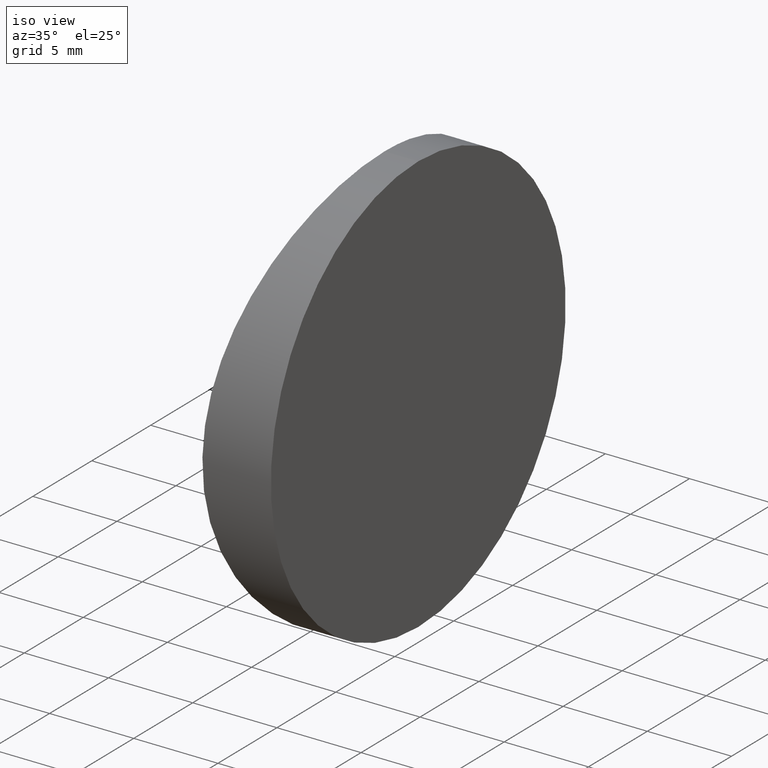
[diagram: clean part render]
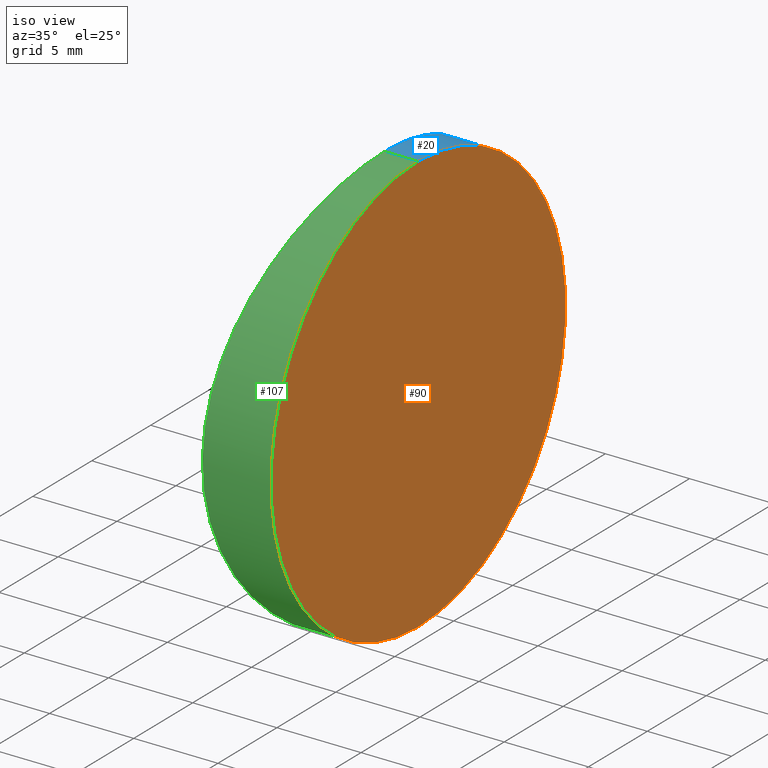
[diagram: same view with three faces highlighted in distinct colors, each labeled with its STEP entity id]
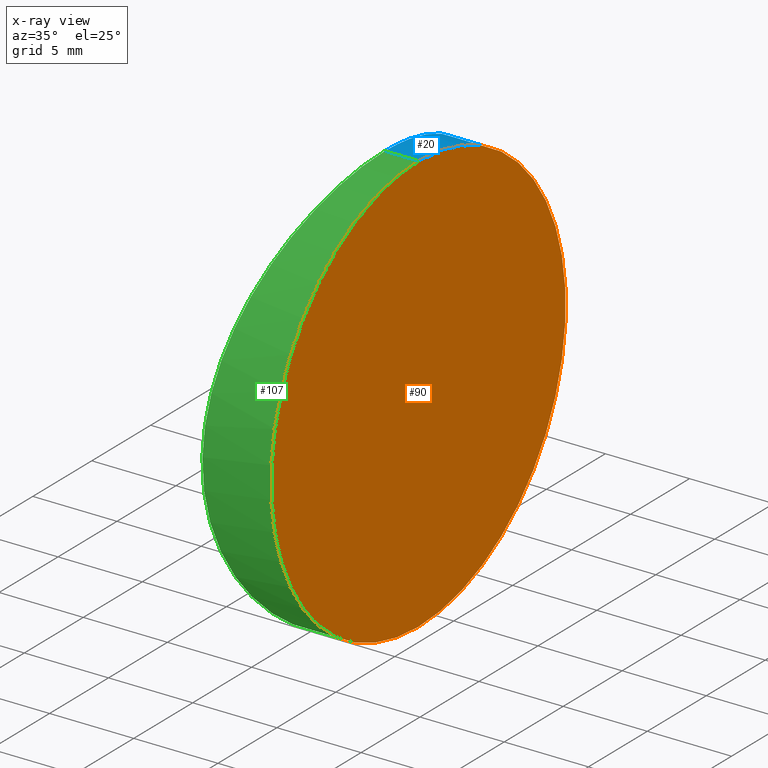
[diagram: x-ray of the same camera — body ghosted, the three highlighted faces saturated]
A machine part, iso view with three faces highlighted in distinct colors.
The next image is the same camera in x-ray (body ghosted, the three faces saturated) — at least one of them is partly hidden behind the body in this view.
Their STEP definitions:

[orange] entity #90 — the highlighted planar face has unit normal (1, 0, -0).
#5 = CIRCLE ( 'NONE', #85, 12.50000000000000500 ) ;
#6 = CARTESIAN_POINT ( 'NONE',  ( -30.35479566514872800, 12.50000000000000200, 12.50000000000001400 ) ) ;
#16 = ORIENTED_EDGE ( 'NONE', *, *, #49, .T. ) ;
#32 = DIRECTION ( 'NONE',  ( -2.775557561562890400E-016, 0.0000000000000000000, -1.000000000000000000 ) ) ;
#33 = VERTEX_POINT ( 'NONE', #6 ) ;
#37 = DIRECTION ( 'NONE',  ( -2.775557561562891800E-016, 0.0000000000000000000, -1.000000000000000000 ) ) ;
#47 = CIRCLE ( 'NONE', #145, 12.50000000000000500 ) ;
#49 = EDGE_CURVE ( 'NONE', #109, #33, #47, .T. ) ;
#52 = AXIS2_PLACEMENT_3D ( 'NONE', #163, #140, #37 ) ;
#56 = DIRECTION ( 'NONE',  ( -2.775557561562890400E-016, 0.0000000000000000000, -1.000000000000000000 ) ) ;
#58 = EDGE_CURVE ( 'NONE', #33, #109, #5, .T. ) ;
#60 = ORIENTED_EDGE ( 'NONE', *, *, #58, .T. ) ;
#75 = CARTESIAN_POINT ( 'NONE',  ( -30.35479566514873200, 12.50000000000000000, 8.425148263810005300E-015 ) ) ;
#85 = AXIS2_PLACEMENT_3D ( 'NONE', #146, #202, #32 ) ;
#88 = CARTESIAN_POINT ( 'NONE',  ( -30.35479566514873500, 12.50000000000000000, -12.49999999999999600 ) ) ;
#90 = ADVANCED_FACE ( 'NONE', ( #210 ), #160, .T. ) ;
#109 = VERTEX_POINT ( 'NONE', #88 ) ;
#140 = DIRECTION ( 'NONE',  ( 1.000000000000000000, 0.0000000000000000000, -2.775557561562891800E-016 ) ) ;
#145 = AXIS2_PLACEMENT_3D ( 'NONE', #75, #179, #56 ) ;
#146 = CARTESIAN_POINT ( 'NONE',  ( -30.35479566514873200, 12.50000000000000000, 8.425148263810005300E-015 ) ) ;
#160 = PLANE ( 'NONE',  #52 ) ;
#163 = CARTESIAN_POINT ( 'NONE',  ( -30.35479566514873500, 25.00000000000000000, -12.49999999999999300 ) ) ;
#179 = DIRECTION ( 'NONE',  ( 1.000000000000000000, 0.0000000000000000000, -2.510324564891254900E-016 ) ) ;
#202 = DIRECTION ( 'NONE',  ( 1.000000000000000000, 0.0000000000000000000, -2.510324564891254900E-016 ) ) ;
#206 = EDGE_LOOP ( 'NONE', ( #16, #60 ) ) ;
#210 = FACE_OUTER_BOUND ( 'NONE', #206, .T. ) ;

[blue] entity #20 — the highlighted cylindrical surface (partial cylindrical patch) has radius 12.5 mm, axis along (1, -0, -0).
#2 = VERTEX_POINT ( 'NONE', #133 ) ;
#6 = CARTESIAN_POINT ( 'NONE',  ( -30.35479566514872800, 12.50000000000000200, 12.50000000000001400 ) ) ;
#7 = CARTESIAN_POINT ( 'NONE',  ( -33.47119643305961700, 21.62554184648596900, 8.552082537265112800 ) ) ;
#8 = CARTESIAN_POINT ( 'NONE',  ( -34.39810283979540600, 24.91789809687301000, -1.651526850015785100 ) ) ;
#10 = CARTESIAN_POINT ( 'NONE',  ( -32.88125121130715200, 18.77356529027105100, -10.84231225351518400 ) ) ;
#12 = CARTESIAN_POINT ( 'NONE',  ( -43.05479566514873100, 12.50000000000000000, 1.195010636699487400E-014 ) ) ;
#20 = ADVANCED_FACE ( 'NONE', ( #114 ), #186, .T. ) ;
#21 = EDGE_CURVE ( 'NONE', #2, #109, #92, .T. ) ;
#23 = CARTESIAN_POINT ( 'NONE',  ( -32.35499043444952600, 13.33137188643888200, 12.50000000000001200 ) ) ;
#24 = CARTESIAN_POINT ( 'NONE',  ( -33.66987187727320900, 22.41618696524534800, 7.621394026702614800 ) ) ;
#25 = CARTESIAN_POINT ( 'NONE',  ( -34.28878151335426600, 24.57196394557599800, -3.268972438969282900 ) ) ;
#26 = CARTESIAN_POINT ( 'NONE',  ( -32.61890513351478700, 16.92566304573188100, -11.69746624897471300 ) ) ;
#28 = DIRECTION ( 'NONE',  ( 0.0000000000000000000, 0.0000000000000000000, -1.000000000000000000 ) ) ;
#29 = EDGE_CURVE ( 'NONE', #2, #191, #195, .T. ) ;
#33 = VERTEX_POINT ( 'NONE', #6 ) ;
#36 = CARTESIAN_POINT ( 'NONE',  ( -32.35499043444952600, 12.50000000000000200, 12.50000000000001400 ) ) ;
#38 = CARTESIAN_POINT ( 'NONE',  ( -43.05479566514873100, 12.50000000000000200, 12.50000000000001800 ) ) ;
#39 = CARTESIAN_POINT ( 'NONE',  ( -32.46445565601055000, 15.36565906833539300, 12.17408620015704200 ) ) ;
#40 = CARTESIAN_POINT ( 'NONE',  ( -33.91988577952091100, 23.34132089832996500, 6.275311958395454000 ) ) ;
#41 = CARTESIAN_POINT ( 'NONE',  ( -34.17191425733323500, 24.19285128528872500, -4.437627627835635000 ) ) ;
#44 = CARTESIAN_POINT ( 'NONE',  ( -32.57409186788743900, 16.53585008383578600, -11.83771008089221300 ) ) ;
#46 = CARTESIAN_POINT ( 'NONE',  ( -32.35499043444955400, 13.33140420755182600, -12.49999999999999800 ) ) ;
#47 = CIRCLE ( 'NONE', #145, 12.50000000000000500 ) ;
#49 = EDGE_CURVE ( 'NONE', #109, #33, #47, .T. ) ;
#54 = ORIENTED_EDGE ( 'NONE', *, *, #73, .T. ) ;
#56 = DIRECTION ( 'NONE',  ( -2.775557561562890400E-016, 0.0000000000000000000, -1.000000000000000000 ) ) ;
#57 = CARTESIAN_POINT ( 'NONE',  ( -32.57602030610242100, 16.55331204058214900, 11.83169481514192100 ) ) ;
#59 = CARTESIAN_POINT ( 'NONE',  ( -34.17321094478526800, 24.19713152622336900, 4.426567198713768500 ) ) ;
#61 = CARTESIAN_POINT ( 'NONE',  ( -33.91901172235972000, 23.33839567913160800, -6.281165327918222000 ) ) ;
#63 = CARTESIAN_POINT ( 'NONE',  ( -32.46334279503634700, 15.35081097956752800, -12.17744324968865200 ) ) ;
#69 = EDGE_LOOP ( 'NONE', ( #143, #54, #91, #150 ) ) ;
#73 = EDGE_CURVE ( 'NONE', #191, #33, #102, .T. ) ;
#75 = CARTESIAN_POINT ( 'NONE',  ( -30.35479566514873200, 12.50000000000000000, 8.425148263810005300E-015 ) ) ;
#76 = CARTESIAN_POINT ( 'NONE',  ( -32.62026768850120800, 16.93682538263315600, 11.69314822468345700 ) ) ;
#77 = CARTESIAN_POINT ( 'NONE',  ( -34.29050405152387500, 24.57747471297531000, 3.248719051436539400 ) ) ;
#79 = CARTESIAN_POINT ( 'NONE',  ( -33.53732757780589700, 21.90824455992082100, -8.269786137502539000 ) ) ;
#88 = CARTESIAN_POINT ( 'NONE',  ( -30.35479566514873500, 12.50000000000000000, -12.49999999999999600 ) ) ;
#91 = ORIENTED_EDGE ( 'NONE', *, *, #49, .F. ) ;
#92 = LINE ( 'NONE', #218, #142 ) ;
#95 = CARTESIAN_POINT ( 'NONE',  ( -32.88217967378811600, 18.77953836592482900, 10.83930256535474300 ) ) ;
#96 = CARTESIAN_POINT ( 'NONE',  ( -34.39810659364498900, 24.91788391076384100, 1.647854282033586900 ) ) ;
#98 = CARTESIAN_POINT ( 'NONE',  ( -33.26924219003250000, 20.74957115124364300, -9.400045176153209800 ) ) ;
#100 = DIRECTION ( 'NONE',  ( 1.000000000000000000, -0.0000000000000000000, -2.775557561562888400E-016 ) ) ;
#102 = LINE ( 'NONE', #38, #194 ) ;
#109 = VERTEX_POINT ( 'NONE', #88 ) ;
#112 = DIRECTION ( 'NONE',  ( 1.000000000000000000, -0.0000000000000000000, -2.775557561562888400E-016 ) ) ;
#113 = CARTESIAN_POINT ( 'NONE',  ( -33.27033028632271800, 20.76751058533281500, 9.410249071414337900 ) ) ;
#114 = FACE_OUTER_BOUND ( 'NONE', #69, .T. ) ;
#115 = CARTESIAN_POINT ( 'NONE',  ( -34.42479807780463800, 25.00000748502369800, -0.8312335560276091800 ) ) ;
#116 = CARTESIAN_POINT ( 'NONE',  ( -33.07014989152160200, 19.78898751007649900, -10.16299661475165900 ) ) ;
#118 = CARTESIAN_POINT ( 'NONE',  ( -32.35499043444953300, 12.50000000000000000, -12.49999999999999600 ) ) ;
#127 = CARTESIAN_POINT ( 'NONE',  ( -32.35499043444952600, 12.50000000000000200, 12.50000000000001400 ) ) ;
#128 = CARTESIAN_POINT ( 'NONE',  ( -33.53808377340634900, 21.89817145232230500, 8.251714015446383500 ) ) ;
#129 = CARTESIAN_POINT ( 'NONE',  ( -34.32088799467995700, 24.67405692139543700, -2.865793362192267800 ) ) ;
#130 = CARTESIAN_POINT ( 'NONE',  ( -32.76583750708169200, 18.05822247603500600, -11.22608583024094900 ) ) ;
#133 = CARTESIAN_POINT ( 'NONE',  ( -32.35499043444953300, 12.50000000000000000, -12.49999999999999600 ) ) ;
#135 = AXIS2_PLACEMENT_3D ( 'NONE', #12, #169, #28 ) ;
#142 = VECTOR ( 'NONE', #100, 1000.000000000000000 ) ;
#143 = ORIENTED_EDGE ( 'NONE', *, *, #29, .T. ) ;
#145 = AXIS2_PLACEMENT_3D ( 'NONE', #75, #179, #56 ) ;
#148 = CARTESIAN_POINT ( 'NONE',  ( -32.38324965136683900, 14.15159362753464500, 12.41788006499636100 ) ) ;
#149 = CARTESIAN_POINT ( 'NONE',  ( -33.73480865586007800, 22.66160511542704000, 7.290934523575428400 ) ) ;
#150 = ORIENTED_EDGE ( 'NONE', *, *, #21, .F. ) ;
#151 = CARTESIAN_POINT ( 'NONE',  ( -34.21433697553718600, 24.33149137517067800, -4.053924783378406900 ) ) ;
#164 = CARTESIAN_POINT ( 'NONE',  ( -32.49816012569387900, 15.76870877863315500, 12.07202897683198000 ) ) ;
#165 = CARTESIAN_POINT ( 'NONE',  ( -34.03174674738138300, 23.72540071963021500, 5.559668255365044900 ) ) ;
#166 = CARTESIAN_POINT ( 'NONE',  ( -34.03111697971893800, 23.72321169362622200, -5.563340709761101600 ) ) ;
#168 = CARTESIAN_POINT ( 'NONE',  ( -32.49633491125222000, 15.74824763167628700, -12.07759716093246100 ) ) ;
#169 = DIRECTION ( 'NONE',  ( 1.000000000000000000, -0.0000000000000000000, -2.775557561562888400E-016 ) ) ;
#179 = DIRECTION ( 'NONE',  ( 1.000000000000000000, 0.0000000000000000000, -2.510324564891254900E-016 ) ) ;
#180 = CARTESIAN_POINT ( 'NONE',  ( -34.21617346675374400, 24.33747457323394100, 4.036553808109689000 ) ) ;
#181 = CARTESIAN_POINT ( 'NONE',  ( -33.67015600722552200, 22.42387198870166300, -7.644646723421753400 ) ) ;
#183 = CARTESIAN_POINT ( 'NONE',  ( -32.38323550218428400, 14.14772679815220300, -12.41788974669581700 ) ) ;
#186 = CYLINDRICAL_SURFACE ( 'NONE', #135, 12.50000000000000500 ) ;
#191 = VERTEX_POINT ( 'NONE', #36 ) ;
#194 = VECTOR ( 'NONE', #112, 1000.000000000000000 ) ;
#195 = B_SPLINE_CURVE_WITH_KNOTS ( 'NONE', 3,
 ( #118, #46, #183, #63, #168, #44, #26, #130, #10, #116, #216, #98, #199, #79, #181, #61, #166, #41, #151, #25, #129, #8, #115, #215, #96, #198, #77, #180, #59, #165, #40, #149, #24, #128, #7, #113, #214, #95, #197, #76, #57, #164, #39, #148, #23, #127 ),
 .UNSPECIFIED., .F., .F.,
 ( 4, 2, 2, 2, 2, 2, 2, 2, 2, 2, 2, 2, 2, 2, 2, 2, 2, 2, 2, 2, 2, 2, 4 ),
 ( -0.01965956743695985000, -0.01720210764477216000, -0.01597337774867831800, -0.01474464785258447500, -0.01228718806039679100, -0.01105845816430295000, -0.009829728268209108800, -0.007372268476021428400, -0.004914808683833746300, -0.003686078787739903400, -0.002457348891646060600, 1.109005416180530700E-007, 0.002457570692729300200, 0.003686300588823143000, 0.004915030484916982400, 0.007372490277104657600, 0.008601220173198496900, 0.009829950069292332800, 0.01228740986147999400, 0.01474486965366765900, 0.01597359954976148800, 0.01720232944585531700, 0.01965978923804298900 ),
 .UNSPECIFIED. ) ;
#197 = CARTESIAN_POINT ( 'NONE',  ( -32.76649940409258500, 18.06198174996481100, 11.22385399649514200 ) ) ;
#198 = CARTESIAN_POINT ( 'NONE',  ( -34.32192979179821900, 24.67735962661697300, 2.851180222827932400 ) ) ;
#199 = CARTESIAN_POINT ( 'NONE',  ( -33.33647099106389800, 21.04993342728970500, -9.127554190676795200 ) ) ;
#214 = CARTESIAN_POINT ( 'NONE',  ( -33.13608141734099600, 20.14240417897302400, 9.925559961918693800 ) ) ;
#215 = CARTESIAN_POINT ( 'NONE',  ( -34.42479325216616100, 24.99999251396288700, 0.8314586587357816200 ) ) ;
#216 = CARTESIAN_POINT ( 'NONE',  ( -33.13611220027835500, 20.11940046282359500, -9.917711937754404500 ) ) ;
#218 = CARTESIAN_POINT ( 'NONE',  ( -43.05479566514873100, 12.50000000000000000, -12.49999999999999300 ) ) ;

[green] entity #107 — the highlighted cylindrical surface (partial cylindrical patch) has radius 12.5 mm, axis along (1, -0, -0).
#1 = DIRECTION ( 'NONE',  ( 1.000000000000000000, -0.0000000000000000000, -2.775557561562888400E-016 ) ) ;
#2 = VERTEX_POINT ( 'NONE', #133 ) ;
#5 = CIRCLE ( 'NONE', #85, 12.50000000000000500 ) ;
#6 = CARTESIAN_POINT ( 'NONE',  ( -30.35479566514872800, 12.50000000000000200, 12.50000000000001400 ) ) ;
#15 = CARTESIAN_POINT ( 'NONE',  ( -33.13613249594019500, 4.857344181767907700, -9.925368560545468500 ) ) ;
#17 = CARTESIAN_POINT ( 'NONE',  ( -34.17185095870382800, 0.8073571477018241000, 4.438175269423243000 ) ) ;
#19 = DIRECTION ( 'NONE',  ( 0.0000000000000000000, 0.0000000000000000000, -1.000000000000000000 ) ) ;
#21 = EDGE_CURVE ( 'NONE', #2, #109, #92, .T. ) ;
#30 = CARTESIAN_POINT ( 'NONE',  ( -33.47126146600697200, 3.374188520226425700, -8.551795578047535400 ) ) ;
#32 = DIRECTION ( 'NONE',  ( -2.775557561562890400E-016, 0.0000000000000000000, -1.000000000000000000 ) ) ;
#33 = VERTEX_POINT ( 'NONE', #6 ) ;
#34 = CARTESIAN_POINT ( 'NONE',  ( -34.21623417031714400, 0.6623277766587097900, -4.035975524509661100 ) ) ;
#35 = CARTESIAN_POINT ( 'NONE',  ( -33.07010215382616300, 5.211257972621425000, 10.16317200741018700 ) ) ;
#36 = CARTESIAN_POINT ( 'NONE',  ( -32.35499043444952600, 12.50000000000000200, 12.50000000000001400 ) ) ;
#38 = CARTESIAN_POINT ( 'NONE',  ( -43.05479566514873100, 12.50000000000000200, 12.50000000000001800 ) ) ;
#50 = CARTESIAN_POINT ( 'NONE',  ( -33.13606081066319600, 4.880852552668101500, 9.917905723828610600 ) ) ;
#58 = EDGE_CURVE ( 'NONE', #33, #109, #5, .T. ) ;
#66 = CARTESIAN_POINT ( 'NONE',  ( -33.91995804683745100, 1.658424367169755400, -6.274875642046759500 ) ) ;
#67 = CARTESIAN_POINT ( 'NONE',  ( -32.35499043444953300, 11.66859579200222900, -12.49999999999999600 ) ) ;
#68 = CARTESIAN_POINT ( 'NONE',  ( -33.67008500529141900, 2.576399816102846500, 7.644995515295172500 ) ) ;
#70 = CARTESIAN_POINT ( 'NONE',  ( -34.32084021493489000, 0.3260947578413218600, 2.866435525630231900 ) ) ;
#71 = CARTESIAN_POINT ( 'NONE',  ( -34.03181727627956100, 1.274358636940738900, -5.559187723024449700 ) ) ;
#72 = CARTESIAN_POINT ( 'NONE',  ( -32.35499043444952600, 12.50000000000000200, 12.50000000000001400 ) ) ;
#73 = EDGE_CURVE ( 'NONE', #191, #33, #102, .T. ) ;
#78 = CYLINDRICAL_SURFACE ( 'NONE', #108, 12.50000000000000500 ) ;
#82 = CARTESIAN_POINT ( 'NONE',  ( -32.46446402789337100, 9.634231224542924500, -12.17406092670616700 ) ) ;
#84 = CARTESIAN_POINT ( 'NONE',  ( -34.42480987382253200, -4.408098965682742000E-005, -0.8306461283394471800 ) ) ;
#85 = AXIS2_PLACEMENT_3D ( 'NONE', #146, #202, #32 ) ;
#86 = CARTESIAN_POINT ( 'NONE',  ( -34.39807231088207800, 0.08219672837417950400, 1.652225099014324300 ) ) ;
#87 = CARTESIAN_POINT ( 'NONE',  ( -32.88121450683905800, 6.226654287007771200, 10.84243680824582700 ) ) ;
#88 = CARTESIAN_POINT ( 'NONE',  ( -30.35479566514873500, 12.50000000000000000, -12.49999999999999600 ) ) ;
#92 = LINE ( 'NONE', #218, #142 ) ;
#97 = ORIENTED_EDGE ( 'NONE', *, *, #58, .F. ) ;
#100 = DIRECTION ( 'NONE',  ( 1.000000000000000000, -0.0000000000000000000, -2.775557561562888400E-016 ) ) ;
#102 = LINE ( 'NONE', #38, #194 ) ;
#104 = CARTESIAN_POINT ( 'NONE',  ( -32.57603668267116600, 8.446537498421017500, -11.83164379769144700 ) ) ;
#105 = CARTESIAN_POINT ( 'NONE',  ( -34.28872888913854000, 0.4282043852531641800, 3.269591618734631700 ) ) ;
#106 = CARTESIAN_POINT ( 'NONE',  ( -32.61888555109510400, 8.074501508061983300, 11.69752797709898200 ) ) ;
#107 = ADVANCED_FACE ( 'NONE', ( #144 ), #78, .T. ) ;
#108 = AXIS2_PLACEMENT_3D ( 'NONE', #172, #1, #19 ) ;
#109 = VERTEX_POINT ( 'NONE', #88 ) ;
#112 = DIRECTION ( 'NONE',  ( 1.000000000000000000, -0.0000000000000000000, -2.775557561562888400E-016 ) ) ;
#120 = CARTESIAN_POINT ( 'NONE',  ( -32.76652873424230700, 6.937819392832981400, -11.22375769695167400 ) ) ;
#122 = ORIENTED_EDGE ( 'NONE', *, *, #177, .T. ) ;
#124 = CARTESIAN_POINT ( 'NONE',  ( -32.49632419285110500, 9.251875689865787700, 12.07762976294572600 ) ) ;
#131 = EDGE_LOOP ( 'NONE', ( #223, #122, #138, #97 ) ) ;
#133 = CARTESIAN_POINT ( 'NONE',  ( -32.35499043444953300, 12.50000000000000000, -12.49999999999999600 ) ) ;
#134 = CARTESIAN_POINT ( 'NONE',  ( -33.27038763994512000, 4.232228100791725300, -9.410022259005781800 ) ) ;
#136 = CARTESIAN_POINT ( 'NONE',  ( -32.88221743509785000, 6.220236416139740300, -10.83917424665937500 ) ) ;
#137 = CARTESIAN_POINT ( 'NONE',  ( -33.33641095847593000, 3.950331280846587100, 9.127801459612420800 ) ) ;
#138 = ORIENTED_EDGE ( 'NONE', *, *, #21, .T. ) ;
#139 = CARTESIAN_POINT ( 'NONE',  ( -32.38323330558282000, 10.85233668085647800, 12.41789606831422600 ) ) ;
#142 = VECTOR ( 'NONE', #100, 1000.000000000000000 ) ;
#144 = FACE_OUTER_BOUND ( 'NONE', #131, .T. ) ;
#146 = CARTESIAN_POINT ( 'NONE',  ( -30.35479566514873200, 12.50000000000000000, 8.425148263810005300E-015 ) ) ;
#155 = CARTESIAN_POINT ( 'NONE',  ( -33.53815107635995900, 3.101557185841072400, -8.251405822009335400 ) ) ;
#156 = CARTESIAN_POINT ( 'NONE',  ( -33.66994291013747900, 2.583540651335394700, -7.621040569160324900 ) ) ;
#158 = CARTESIAN_POINT ( 'NONE',  ( -34.32197682981623600, 0.3224910838066309400, -2.850544758614913300 ) ) ;
#159 = CARTESIAN_POINT ( 'NONE',  ( -33.53726024454412900, 3.092026836289030200, 8.270091881254130000 ) ) ;
#170 = CARTESIAN_POINT ( 'NONE',  ( -33.73488044994069000, 2.338125880179664500, -7.290560403995582000 ) ) ;
#171 = CARTESIAN_POINT ( 'NONE',  ( -32.35499043444953300, 12.50000000000000000, -12.49999999999999600 ) ) ;
#172 = CARTESIAN_POINT ( 'NONE',  ( -43.05479566514873100, 12.50000000000000000, 1.195010636699487400E-014 ) ) ;
#173 = CARTESIAN_POINT ( 'NONE',  ( -34.21427672515175500, 0.6687049068172878900, 4.054495669692025600 ) ) ;
#174 = CARTESIAN_POINT ( 'NONE',  ( -33.26918489652644000, 4.250690292689426100, 9.400273991954069400 ) ) ;
#175 = CARTESIAN_POINT ( 'NONE',  ( -32.35499043444951200, 11.66862811311520300, 12.50000000000000900 ) ) ;
#177 = EDGE_CURVE ( 'NONE', #191, #2, #212, .T. ) ;
#187 = CARTESIAN_POINT ( 'NONE',  ( -32.38325185041205100, 10.84834258877293300, -12.41787374239619400 ) ) ;
#191 = VERTEX_POINT ( 'NONE', #36 ) ;
#192 = CARTESIAN_POINT ( 'NONE',  ( -32.76580812928502000, 6.941976754728525400, 11.22618226796880200 ) ) ;
#194 = VECTOR ( 'NONE', #112, 1000.000000000000000 ) ;
#202 = DIRECTION ( 'NONE',  ( 1.000000000000000000, 0.0000000000000000000, -2.510324564891254900E-016 ) ) ;
#203 = CARTESIAN_POINT ( 'NONE',  ( -34.17327467165884500, 0.8026586988863035900, -4.426014519093107500 ) ) ;
#204 = CARTESIAN_POINT ( 'NONE',  ( -32.49817099255630400, 9.231167153226090600, -12.07199590072036900 ) ) ;
#205 = CARTESIAN_POINT ( 'NONE',  ( -34.39813688680154500, 0.08202198102754430800, -1.647160350318250400 ) ) ;
#207 = CARTESIAN_POINT ( 'NONE',  ( -33.91893760916150300, 1.661865808234726000, 6.281611598946194700 ) ) ;
#208 = CARTESIAN_POINT ( 'NONE',  ( -34.42478144513695100, 4.411616463657323700E-005, 0.8319723068585742600 ) ) ;
#209 = CARTESIAN_POINT ( 'NONE',  ( -32.57407538169795900, 8.464302155864889000, 11.83776140728138800 ) ) ;
#212 = B_SPLINE_CURVE_WITH_KNOTS ( 'NONE', 3,
 ( #72, #175, #139, #224, #124, #209, #106, #192, #87, #35, #50, #174, #137, #159, #68, #207, #222, #17, #173, #105, #70, #86, #208, #84, #205, #158, #221, #34, #203, #71, #66, #170, #156, #155, #30, #134, #15, #136, #120, #220, #104, #204, #82, #187, #67, #171 ),
 .UNSPECIFIED., .F., .F.,
 ( 4, 2, 2, 2, 2, 2, 2, 2, 2, 2, 2, 2, 2, 2, 2, 2, 2, 2, 2, 2, 2, 2, 4 ),
 ( 0.01965978923804298900, 0.02211724903154878600, 0.02334597892830168500, 0.02457470882505458400, 0.02703216861856038600, 0.02826089851531328500, 0.02948962841206618400, 0.03194708820557198800, 0.03440454799907778600, 0.03563327789583069200, 0.03686200779258359100, 0.03931946758608939600, 0.04177692737959518700, 0.04300565727634808600, 0.04423438717310099200, 0.04669184696660679000, 0.04792057686335968900, 0.04914930676011258800, 0.05160676655361838600, 0.05406422634712417000, 0.05529295624387706200, 0.05652168614062996800, 0.05897914593413573800 ),
 .UNSPECIFIED. ) ;
#218 = CARTESIAN_POINT ( 'NONE',  ( -43.05479566514873100, 12.50000000000000000, -12.49999999999999300 ) ) ;
#220 = CARTESIAN_POINT ( 'NONE',  ( -32.62028713454996200, 8.063011588116250300, -11.69308690292969500 ) ) ;
#221 = CARTESIAN_POINT ( 'NONE',  ( -34.29055604051425400, 0.4223590755706690400, -3.248102800444713000 ) ) ;
#222 = CARTESIAN_POINT ( 'NONE',  ( -34.03104652339447300, 1.277028732676733100, 5.563820837061037100 ) ) ;
#223 = ORIENTED_EDGE ( 'NONE', *, *, #73, .F. ) ;
#224 = CARTESIAN_POINT ( 'NONE',  ( -32.46333455104467400, 9.649297589974004600, 12.17746813026618100 ) ) ;